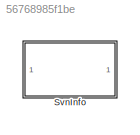
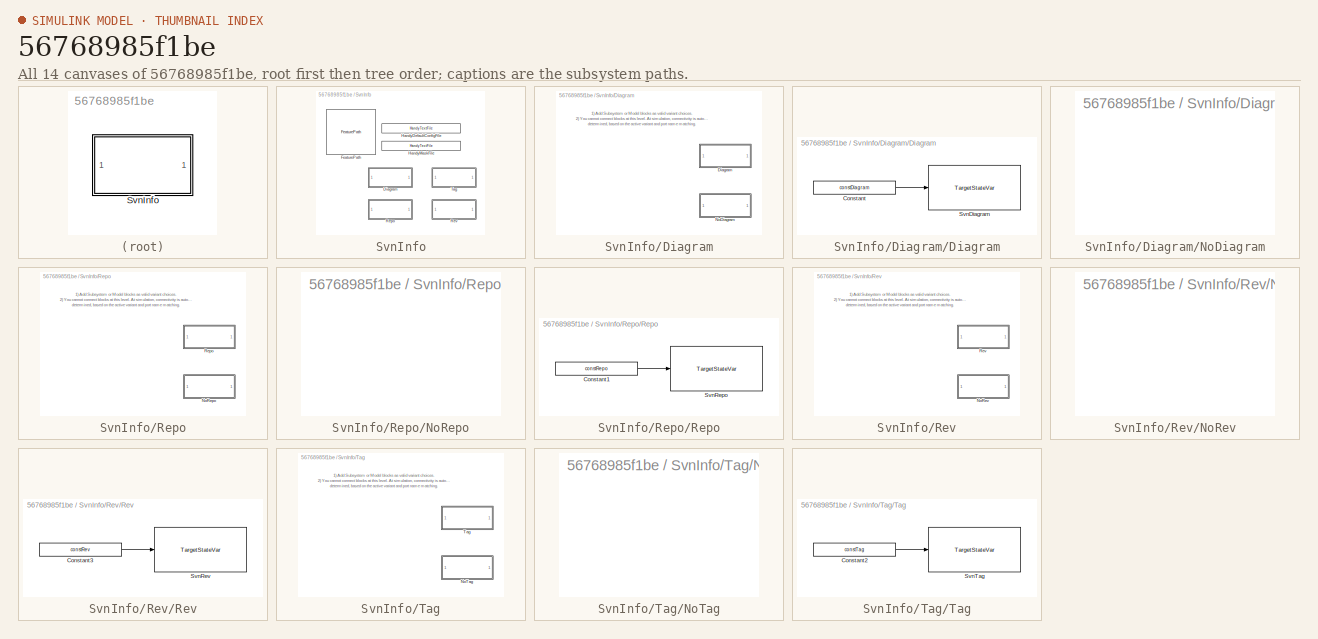
[diagram: thumbnail index - all 14 canvases of the model, root first then tree order]
MODEL slx_56768985f1be
KIND library
CONFIG AbsTol = auto
CONFIG EnableMultiTasking = off
CONFIG FixedStep = auto
CONFIG MaxStep = auto
CONFIG MinStep = auto
CONFIG RelTol = 1e-3
CONFIG SampleTimeConstraint = Unconstrained
CONFIG SolverName = VariableStepAuto
CONFIG StartTime = 0.0
CONFIG StopTime = 10.0
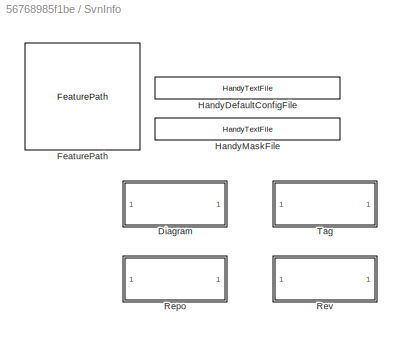
BLOCK [SubSystem] SvnInfo
  MoveFcn = SvnInfoMask.CB_TriggerInit(gcbh);
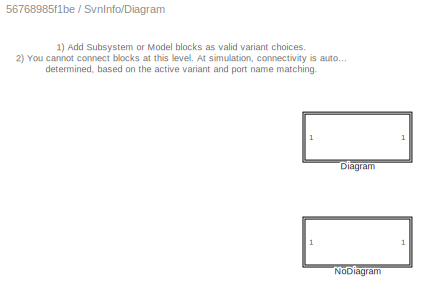
BLOCK [SubSystem] SvnInfo/Diagram
  Variant = on
BLOCK [SubSystem] SvnInfo/Diagram/Diagram
  VariantControl = (default)
BLOCK [Constant] SvnInfo/Diagram/Diagram/Constant
  Value = constDiagram
BLOCK [Reference] SvnInfo/Diagram/Diagram/SvnDiagram  REF=StateVar/TargetStateVar
  SourceBlock = StateVar/TargetStateVar
  SourceProductName = Bose Talaria
  SourceType = Talaria Target State Variable
BLOCK [SubSystem] SvnInfo/Diagram/NoDiagram
  VariantControl = Config.DiagramChars == 0
BLOCK [Reference] SvnInfo/FeaturePath  REF=FeaturePath/FeaturePath
  SourceBlock = FeaturePath/FeaturePath
  SourceProductName = Bose Talaria
  SourceType = Talaria Feature Path
BLOCK [Reference] SvnInfo/HandyDefaultConfigFile  REF=HandyTextFile/HandyTextFile
  SourceBlock = HandyTextFile/HandyTextFile
  SourceProductName = Bose Talaria
  SourceType = Talaria Handy Text File
BLOCK [Reference] SvnInfo/HandyMaskFile  REF=HandyTextFile/HandyTextFile
  SourceBlock = HandyTextFile/HandyTextFile
  SourceProductName = Bose Talaria
  SourceType = Talaria Handy Text File
BLOCK [SubSystem] SvnInfo/Repo
  Variant = on
BLOCK [SubSystem] SvnInfo/Repo/NoRepo
  VariantControl = Config.RepoChars == 0
BLOCK [SubSystem] SvnInfo/Repo/Repo
  VariantControl = (default)
BLOCK [Constant] SvnInfo/Repo/Repo/Constant1
  Value = constRepo
BLOCK [Reference] SvnInfo/Repo/Repo/SvnRepo  REF=StateVar/TargetStateVar
  SourceBlock = StateVar/TargetStateVar
  SourceProductName = Bose Talaria
  SourceType = Talaria Target State Variable
BLOCK [SubSystem] SvnInfo/Rev
  Variant = on
BLOCK [SubSystem] SvnInfo/Rev/NoRev
  VariantControl = Config.RevChars == 0
BLOCK [SubSystem] SvnInfo/Rev/Rev
  VariantControl = (default)
BLOCK [Constant] SvnInfo/Rev/Rev/Constant3
  Value = constRev
BLOCK [Reference] SvnInfo/Rev/Rev/SvnRev  REF=StateVar/TargetStateVar
  SourceBlock = StateVar/TargetStateVar
  SourceProductName = Bose Talaria
  SourceType = Talaria Target State Variable
BLOCK [SubSystem] SvnInfo/Tag
  Variant = on
BLOCK [SubSystem] SvnInfo/Tag/NoTag
  VariantControl = Config.TagChars == 0
BLOCK [SubSystem] SvnInfo/Tag/Tag
  VariantControl = (default)
BLOCK [Constant] SvnInfo/Tag/Tag/Constant2
  Value = constTag
BLOCK [Reference] SvnInfo/Tag/Tag/SvnTag  REF=StateVar/TargetStateVar
  SourceBlock = StateVar/TargetStateVar
  SourceProductName = Bose Talaria
  SourceType = Talaria Target State Variable
ANNOTATION SvnInfo/Diagram: 1) Add Subsystem or Model blocks as valid variant choices. 2) You cannot connect blocks at this level. At simulation, connectivity is automatically determined, based on the active variant and port name matching.
ANNOTATION SvnInfo/Repo: 1) Add Subsystem or Model blocks as valid variant choices. 2) You cannot connect blocks at this level. At simulation, connectivity is automatically determined, based on the active variant and port name matching.
ANNOTATION SvnInfo/Rev: 1) Add Subsystem or Model blocks as valid variant choices. 2) You cannot connect blocks at this level. At simulation, connectivity is automatically determined, based on the active variant and port name matching.
ANNOTATION SvnInfo/Tag: 1) Add Subsystem or Model blocks as valid variant choices. 2) You cannot connect blocks at this level. At simulation, connectivity is automatically determined, based on the active variant and port name matching.
LINE SvnInfo/Diagram/Diagram/Constant:1 -> SvnInfo/Diagram/Diagram/SvnDiagram:1
LINE SvnInfo/Repo/Repo/Constant1:1 -> SvnInfo/Repo/Repo/SvnRepo:1
LINE SvnInfo/Rev/Rev/Constant3:1 -> SvnInfo/Rev/Rev/SvnRev:1
LINE SvnInfo/Tag/Tag/Constant2:1 -> SvnInfo/Tag/Tag/SvnTag:1
